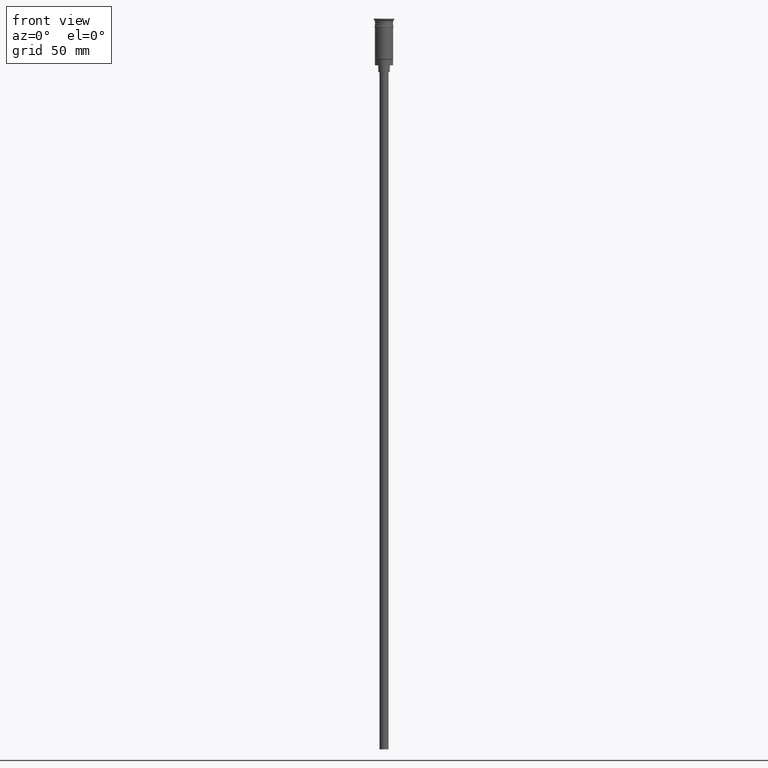
[diagram: clean part render]
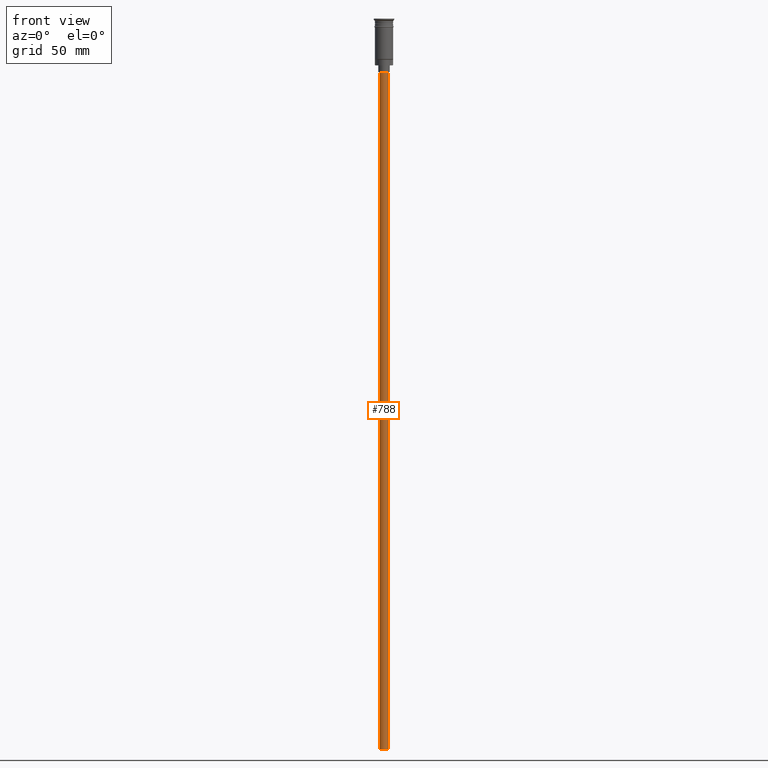
[diagram: same view with one face highlighted and labeled with its STEP entity id]
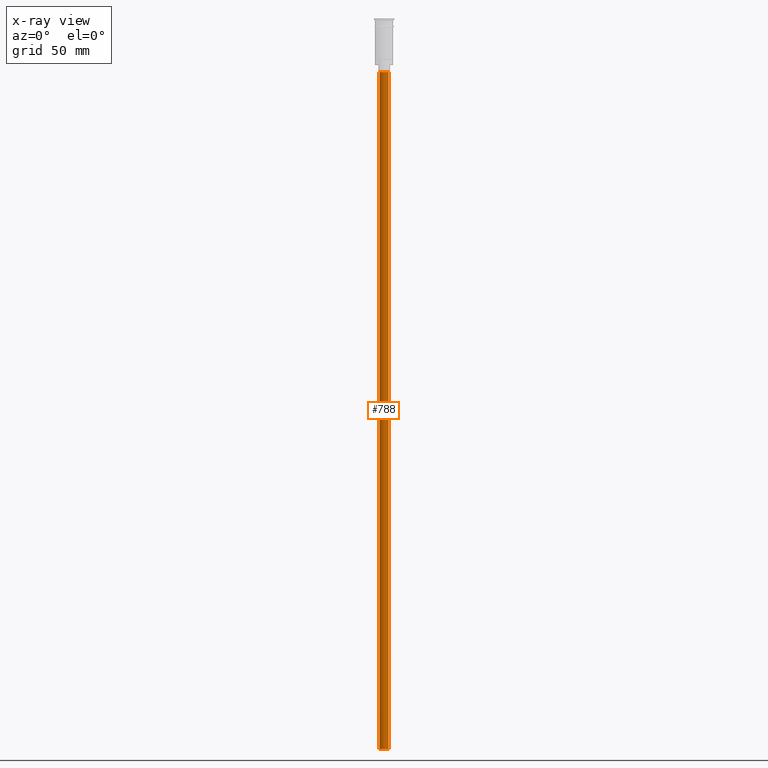
[diagram: x-ray of the same camera — body ghosted, the highlighted face saturated]
A machine part, front view. The second image highlights one B-rep face of the part: STEP entity #788.
The next image is the same camera in x-ray: the body ghosted, the highlighted face saturated — about 0% of this face is hidden behind the body in this view.
In plain terms, the highlighted cylindrical surface (edge-blend (fillet) strip) has radius 2 mm, axis along (-0, -0, 1).
Its self-contained STEP definition (entity closure, byte-faithful):
#66 = CARTESIAN_POINT ( 'NONE',  ( 0.000000000000000000, 0.000000000000000000, -23.49999999999999645 ) ) ;
#74 = DIRECTION ( 'NONE',  ( -1.000000000000000000, 0.000000000000000000, 0.000000000000000000 ) ) ;
#188 = VECTOR ( 'NONE', #538, 1000.000000000000000 ) ;
#191 = EDGE_CURVE ( 'NONE', #1218, #833, #1209, .T. ) ;
#306 = ORIENTED_EDGE ( 'NONE', *, *, #1189, .T. ) ;
#322 = AXIS2_PLACEMENT_3D ( 'NONE', #66, #1303, #74 ) ;
#419 = CARTESIAN_POINT ( 'NONE',  ( 0.000000000000000000, 0.000000000000000000, -320.5000000000000000 ) ) ;
#474 = VERTEX_POINT ( 'NONE', #731 ) ;
#520 = EDGE_CURVE ( 'NONE', #663, #474, #1366, .T. ) ;
#536 = AXIS2_PLACEMENT_3D ( 'NONE', #419, #910, #1534 ) ;
#538 = DIRECTION ( 'NONE',  ( -0.000000000000000000, -0.000000000000000000, 1.000000000000000000 ) ) ;
#663 = VERTEX_POINT ( 'NONE', #1290 ) ;
#731 = CARTESIAN_POINT ( 'NONE',  ( -2.000000000000000000, 2.449293598294706414E-16, -23.49999999999999645 ) ) ;
#734 = CARTESIAN_POINT ( 'NONE',  ( 2.000000000000000000, 0.000000000000000000, -320.5000000000000000 ) ) ;
#788 = ADVANCED_FACE ( 'NONE', ( #1528 ), #1043, .T. ) ;
#800 = EDGE_LOOP ( 'NONE', ( #1220, #1056, #1468, #306 ) ) ;
#829 = DIRECTION ( 'NONE',  ( -1.000000000000000000, 0.000000000000000000, 0.000000000000000000 ) ) ;
#833 = VERTEX_POINT ( 'NONE', #863 ) ;
#838 = DIRECTION ( 'NONE',  ( -0.000000000000000000, -0.000000000000000000, 1.000000000000000000 ) ) ;
#845 = AXIS2_PLACEMENT_3D ( 'NONE', #1066, #1089, #829 ) ;
#863 = CARTESIAN_POINT ( 'NONE',  ( 2.000000000000000000, 0.000000000000000000, -23.49999999999999645 ) ) ;
#867 = VECTOR ( 'NONE', #838, 1000.000000000000000 ) ;
#890 = CARTESIAN_POINT ( 'NONE',  ( -2.000000000000000000, 2.449293598294706414E-16, -320.5000000000000000 ) ) ;
#910 = DIRECTION ( 'NONE',  ( -0.000000000000000000, -0.000000000000000000, 1.000000000000000000 ) ) ;
#1043 = CYLINDRICAL_SURFACE ( 'NONE', #536, 2.000000000000000000 ) ;
#1056 = ORIENTED_EDGE ( 'NONE', *, *, #1161, .F. ) ;
#1066 = CARTESIAN_POINT ( 'NONE',  ( 0.000000000000000000, 0.000000000000000000, -320.5000000000000000 ) ) ;
#1089 = DIRECTION ( 'NONE',  ( 0.000000000000000000, 0.000000000000000000, -1.000000000000000000 ) ) ;
#1161 = EDGE_CURVE ( 'NONE', #1218, #663, #1541, .T. ) ;
#1189 = EDGE_CURVE ( 'NONE', #833, #474, #1258, .T. ) ;
#1209 = LINE ( 'NONE', #734, #867 ) ;
#1218 = VERTEX_POINT ( 'NONE', #1350 ) ;
#1220 = ORIENTED_EDGE ( 'NONE', *, *, #520, .F. ) ;
#1258 = CIRCLE ( 'NONE', #322, 2.000000000000000000 ) ;
#1290 = CARTESIAN_POINT ( 'NONE',  ( -2.000000000000000000, 2.449293598294706414E-16, -320.5000000000000000 ) ) ;
#1303 = DIRECTION ( 'NONE',  ( 0.000000000000000000, 0.000000000000000000, -1.000000000000000000 ) ) ;
#1350 = CARTESIAN_POINT ( 'NONE',  ( 2.000000000000000000, 0.000000000000000000, -320.5000000000000000 ) ) ;
#1366 = LINE ( 'NONE', #890, #188 ) ;
#1468 = ORIENTED_EDGE ( 'NONE', *, *, #191, .T. ) ;
#1528 = FACE_OUTER_BOUND ( 'NONE', #800, .T. ) ;
#1534 = DIRECTION ( 'NONE',  ( 1.000000000000000000, 0.000000000000000000, 0.000000000000000000 ) ) ;
#1541 = CIRCLE ( 'NONE', #845, 2.000000000000000000 ) ;